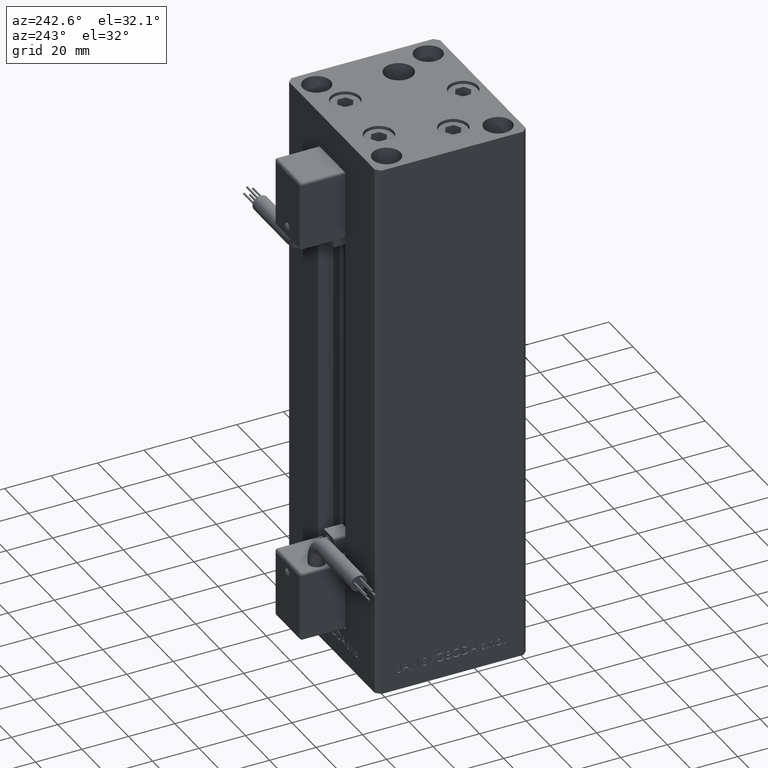
[diagram: clean part render]
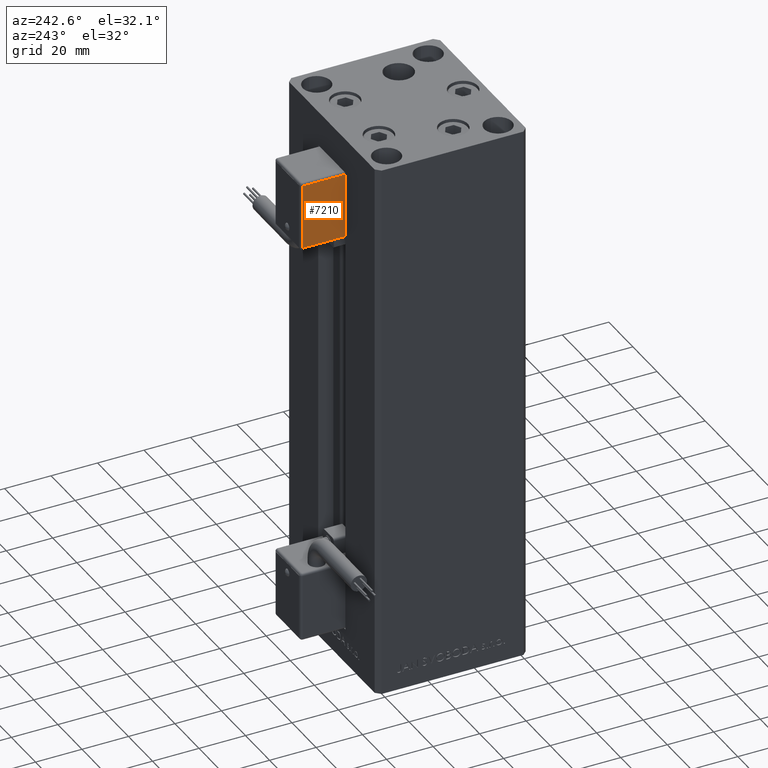
[diagram: same view with one face highlighted and labeled with its STEP entity id]
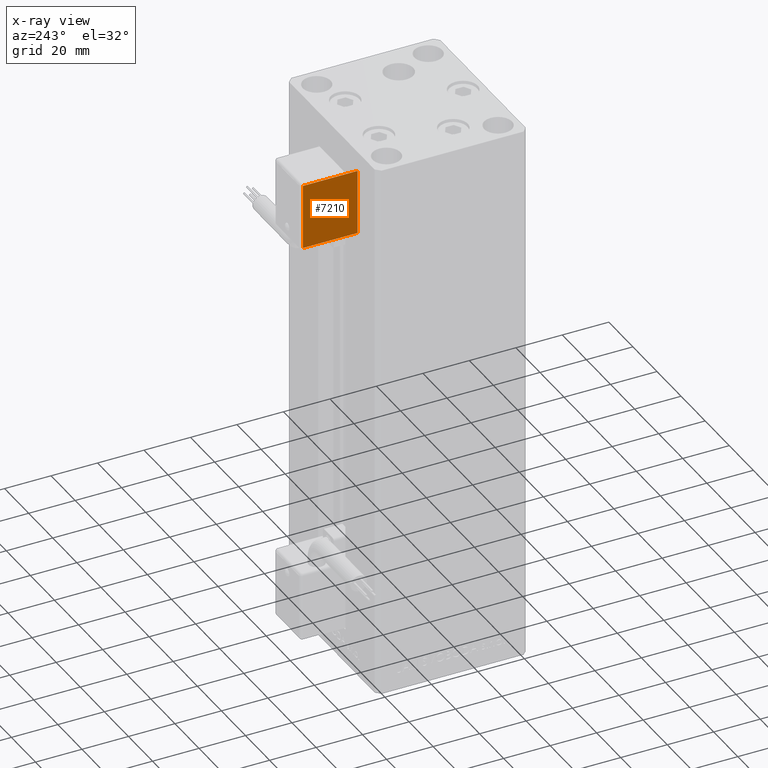
[diagram: x-ray of the same camera — body ghosted, the highlighted face saturated]
A machine part, auxiliary view. The second image highlights one B-rep face of the part: STEP entity #7210.
The next image is the same camera in x-ray: the body ghosted, the highlighted face saturated — about 0% of this face is hidden behind the body in this view.
In plain terms, the highlighted planar face has unit normal (1, 0, 0).
Its self-contained STEP definition (entity closure, byte-faithful):
#1026 = VERTEX_POINT ( 'NONE', #36761 ) ;
#1354 = LINE ( 'NONE', #18267, #15575 ) ;
#1641 = DIRECTION ( 'NONE',  ( 1.000000000000000000, 4.930380657629929601E-32, 1.094764425253299406E-47 ) ) ;
#4455 = AXIS2_PLACEMENT_3D ( 'NONE', #41860, #1641, #23007 ) ;
#5618 = PLANE ( 'NONE',  #4455 ) ;
#6988 = VECTOR ( 'NONE', #47559, 1000.000000000000000 ) ;
#7210 = ADVANCED_FACE ( 'NONE', ( #25738 ), #5618, .F. ) ;
#7559 = DIRECTION ( 'NONE',  ( 3.108624468950000014E-32, -1.000000000000000000, -1.400000000000000069E-16 ) ) ;
#7967 = ORIENTED_EDGE ( 'NONE', *, *, #42961, .T. ) ;
#11544 = LINE ( 'NONE', #43817, #39811 ) ;
#12750 = LINE ( 'NONE', #28638, #19564 ) ;
#14501 = CARTESIAN_POINT ( 'NONE',  ( -10.80000000000000071, 50.50000000000000000, -26.00000000000000000 ) ) ;
#14849 = ORIENTED_EDGE ( 'NONE', *, *, #25173, .T. ) ;
#15575 = VECTOR ( 'NONE', #17490, 1000.000000000000000 ) ;
#15827 = EDGE_CURVE ( 'NONE', #26630, #36130, #12750, .T. ) ;
#17490 = DIRECTION ( 'NONE',  ( 2.220446049250000002E-16, 1.200000000000000024E-16, -1.000000000000000000 ) ) ;
#18267 = CARTESIAN_POINT ( 'NONE',  ( -10.80000000000000071, 50.50000000000000000, -55.00000000000000000 ) ) ;
#19564 = VECTOR ( 'NONE', #37086, 1000.000000000000000 ) ;
#22074 = CARTESIAN_POINT ( 'NONE',  ( -10.80000000000000071, 27.00000000000000000, -54.00000000000000000 ) ) ;
#23007 = DIRECTION ( 'NONE',  ( 0.000000000000000000, -2.220446049250000002E-16, 1.000000000000000000 ) ) ;
#24930 = ORIENTED_EDGE ( 'NONE', *, *, #15827, .T. ) ;
#25173 = EDGE_CURVE ( 'NONE', #36130, #1026, #1354, .T. ) ;
#25738 = FACE_OUTER_BOUND ( 'NONE', #37990, .T. ) ;
#26630 = VERTEX_POINT ( 'NONE', #26653 ) ;
#26653 = CARTESIAN_POINT ( 'NONE',  ( -10.80000000000000071, 27.00000000000000000, -26.00000000000000000 ) ) ;
#28638 = CARTESIAN_POINT ( 'NONE',  ( -10.80000000000000071, 26.00000000000000000, -26.00000000000000000 ) ) ;
#35660 = LINE ( 'NONE', #35924, #6988 ) ;
#35924 = CARTESIAN_POINT ( 'NONE',  ( -10.80000000000000071, 27.00000000000000000, -55.00000000000000000 ) ) ;
#36130 = VERTEX_POINT ( 'NONE', #14501 ) ;
#36293 = VERTEX_POINT ( 'NONE', #22074 ) ;
#36761 = CARTESIAN_POINT ( 'NONE',  ( -10.80000000000000071, 50.50000000000000000, -54.00000000000000000 ) ) ;
#37086 = DIRECTION ( 'NONE',  ( -3.108624468950000014E-32, 1.000000000000000000, 1.400000000000000069E-16 ) ) ;
#37990 = EDGE_LOOP ( 'NONE', ( #24930, #14849, #7967, #39328 ) ) ;
#39328 = ORIENTED_EDGE ( 'NONE', *, *, #50033, .T. ) ;
#39811 = VECTOR ( 'NONE', #7559, 1000.000000000000000 ) ;
#41860 = CARTESIAN_POINT ( 'NONE',  ( -10.80000000000000071, 26.00000000000000000, -55.00000000000000000 ) ) ;
#42961 = EDGE_CURVE ( 'NONE', #1026, #36293, #11544, .T. ) ;
#43817 = CARTESIAN_POINT ( 'NONE',  ( -10.80000000000000071, 26.00000000000000000, -54.00000000000000000 ) ) ;
#47559 = DIRECTION ( 'NONE',  ( -2.220446049250000002E-16, -1.200000000000000024E-16, 1.000000000000000000 ) ) ;
#50033 = EDGE_CURVE ( 'NONE', #36293, #26630, #35660, .T. ) ;